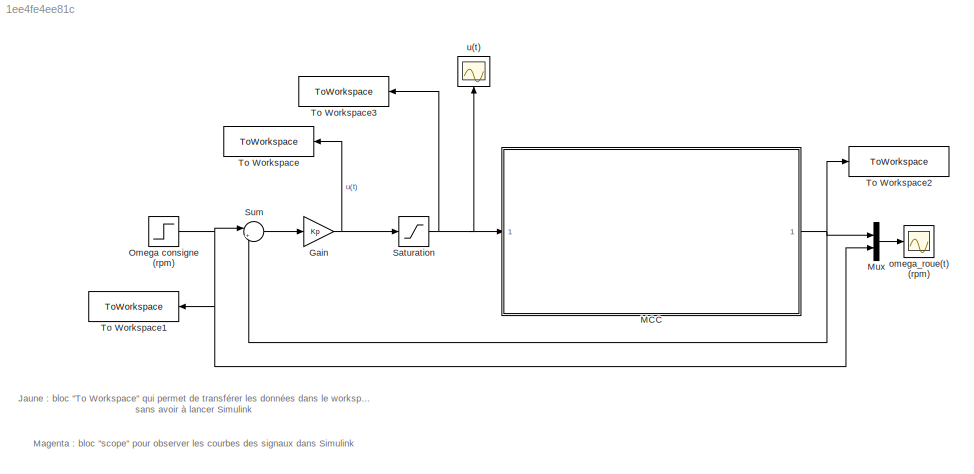
MODEL slx_1ee4fe4ee81c
KIND model
CONFIG AbsTol = auto
CONFIG EnableMultiTasking = off
CONFIG FixedStep = auto
CONFIG MaxStep = auto
CONFIG MinStep = auto
CONFIG RelTol = 1e-3
CONFIG SampleTimeConstraint = Unconstrained
CONFIG SolverName = VariableStepAuto
CONFIG StartTime = 0.0
CONFIG StopTime = 4
BLOCK [Gain] Gain
  Gain = Kp
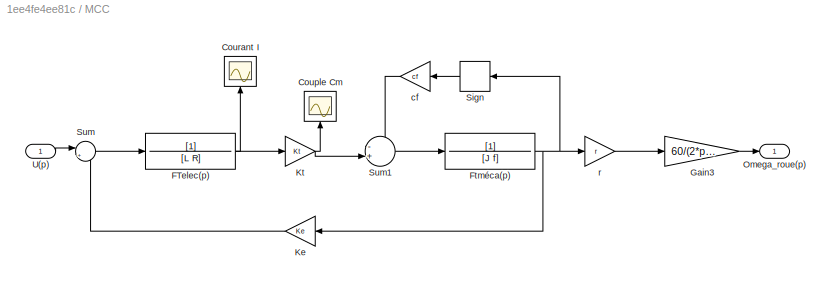
BLOCK [SubSystem] MCC
BLOCK [Scope] MCC/Couple Cm
  ActiveDisplayYMaximum = 1
  ActiveDisplayYMinimum = -1
  DataLoggingVariableName = ScopeData2
  Floating = off
  GraphicalSettings = {"Style":{"BackgroundColor":[0.12941176470588237,0.12941176470588237,0.12941176470588237],"AxesColor":[0.07058823529411765,0.07058823529411765,0.07058823529411765],"LabelsColor":[0.8509803921568627,0.8509803921568627,0.8509803921568627],"PreserveColors":false,"Visible":[true],"LineStyle":["-"],"LineWidth":[1.5],"BarWidth":[0.9],"LineColor":["auto"],"LineFaceAlpha":[1],"LineEdgeAlpha":[1],"Marker":...<+1896ch>
  MultipleDisplayCache = [{"MaxYLimMag":1,"MaxYLimReal":1,"MinYLimMag":0,"MinYLimReal":-1,"PlotAsMagnitudePhase":false,"ShowGrid":true,"ShowLegend":false,"Title":"%<SignalLabel>","YLabel":""}]
  NameLocation = left
  NumInputPorts = 1
  ScopeFrameLocation = window
  WasSavedAsWebScope = on
  WindowPosition = [573.000000,323.000000,560.000000,420.000000,]
BLOCK [Scope] MCC/Courant I
  ActiveDisplayYMaximum = 1
  ActiveDisplayYMinimum = -1
  DataLoggingVariableName = ScopeData1
  Floating = off
  GraphicalSettings = {"Style":{"BackgroundColor":[0.12941176470588237,0.12941176470588237,0.12941176470588237],"AxesColor":[0.07058823529411765,0.07058823529411765,0.07058823529411765],"LabelsColor":[0.8509803921568627,0.8509803921568627,0.8509803921568627],"PreserveColors":false,"Visible":[true],"LineStyle":["-"],"LineWidth":[1.5],"BarWidth":[0.9],"LineColor":["auto"],"LineFaceAlpha":[1],"LineEdgeAlpha":[1],"Marker":...<+1906ch>
  MultipleDisplayCache = [{"MaxYLimMag":1,"MaxYLimReal":1,"MinYLimMag":0,"MinYLimReal":-1,"PlotAsMagnitudePhase":false,"ShowGrid":true,"ShowLegend":false,"Title":"%<SignalLabel>","YLabel":""}]
  NameLocation = right
  NumInputPorts = 1
  ScopeFrameLocation = window
  WasSavedAsWebScope = on
  WindowPosition = [573.000000,323.000000,560.000000,420.000000,]
BLOCK [TransferFcn] MCC/FTelec(p)
  Denominator = [L R]
BLOCK [TransferFcn] MCC/Ftméca(p)
  Denominator = [J f]
BLOCK [Gain] MCC/Gain3
  Gain = 60/(2*pi)
BLOCK [Gain] MCC/Ke
  Gain = Ke
BLOCK [Gain] MCC/Kt
  Gain = Kt
BLOCK [Outport] MCC/Omega_roue(p)
BLOCK [Signum] MCC/Sign
BLOCK [Sum] MCC/Sum
  Inputs = |+-
BLOCK [Sum] MCC/Sum1
  Inputs = -+|
  NameLocation = top
BLOCK [Inport] MCC/U(p)
BLOCK [Gain] MCC/cf
  Gain = cf
BLOCK [Gain] MCC/r
  Gain = r
BLOCK [Mux] Mux
  DisplayOption = bar
  Inputs = 2
BLOCK [Step] Omega consigne (rpm)
  After = 216
  SampleTime = 0
BLOCK [Saturate] Saturation
  LowerLimit = -7.34
  UpperLimit = 7.34
BLOCK [Sum] Sum
  Inputs = |+-
BLOCK [ToWorkspace] To Workspace
  FixptAsFi = on
  MaxDataPoints = inf
  NameLocation = top
  SampleTime = -1
  VariableName = u
BLOCK [ToWorkspace] To Workspace1
  FixptAsFi = on
  MaxDataPoints = inf
  NameLocation = top
  SampleTime = -1
  VariableName = omega_consigne
BLOCK [ToWorkspace] To Workspace2
  FixptAsFi = on
  MaxDataPoints = inf
  NameLocation = top
  SampleTime = -1
  VariableName = omega_roue
BLOCK [ToWorkspace] To Workspace3
  FixptAsFi = on
  MaxDataPoints = inf
  NameLocation = top
  SampleTime = -1
  VariableName = u_sat
BLOCK [Scope] omega_roue(t) (rpm)
  ActiveDisplayYMaximum = 349.87192239105997
  ActiveDisplayYMinimum = 30.932240726116788
  Floating = off
  GraphicalSettings = {"Style":{"BackgroundColor":[0.12941176470588237,0.12941176470588237,0.12941176470588237],"AxesColor":[0.07058823529411765,0.07058823529411765,0.07058823529411765],"LabelsColor":[0.8509803921568627,0.8509803921568627,0.8509803921568627],"PreserveColors":false,"Visible":[true,true],"LineStyle":["-","-"],"LineWidth":[1.5,1.5],"BarWidth":[0.9,0.9],"LineColor":["auto","auto"],"LineFaceAlpha":[1,1],"Li...<+2413ch>
  MultipleDisplayCache = [{"MaxYLimMag":243,"MaxYLimReal":349.87192239105997,"MinYLimMag":0,"MinYLimReal":30.932240726116788,"PlotAsMagnitudePhase":false,"ShowGrid":true,"ShowLegend":true,"Title":"%<SignalLabel>","YLabel":""}]
  NumInputPorts = 1
  ScopeFrameLocation = window
  ShowLegend = on
  WasSavedAsWebScope = on
  WindowPosition = [197.000000,280.000000,854.000000,623.000000,]
BLOCK [Scope] u(t)
  ActiveDisplayYMaximum = 1
  ActiveDisplayYMinimum = -1
  DataLoggingVariableName = ScopeData4
  Floating = off
  GraphicalSettings = {"Style":{"BackgroundColor":[0.12941176470588237,0.12941176470588237,0.12941176470588237],"AxesColor":[0.07058823529411765,0.07058823529411765,0.07058823529411765],"LabelsColor":[0.8509803921568627,0.8509803921568627,0.8509803921568627],"PreserveColors":false,"Visible":[true],"LineStyle":["-"],"LineWidth":[1.5],"BarWidth":[0.9],"LineColor":["auto"],"LineFaceAlpha":[1],"LineEdgeAlpha":[1],"Marker":...<+1902ch>
  MultipleDisplayCache = [{"MaxYLimMag":1,"MaxYLimReal":1,"MinYLimMag":0,"MinYLimReal":-1,"PlotAsMagnitudePhase":false,"ShowGrid":true,"ShowLegend":false,"Title":"%<SignalLabel>","YLabel":""}]
  NameLocation = right
  NumInputPorts = 1
  ScopeFrameLocation = window
  WasSavedAsWebScope = on
  WindowPosition = [680.000000,330.000000,560.000000,420.000000,]
ANNOTATION (root): Jaune : bloc "To Workspace" qui permet de transférer les données dans le workspace MATLAB, utilse pour tracer des courbes sans avoir à lancer Simulink
ANNOTATION (root): Magenta : bloc "scope" pour observer les courbes des signaux dans Simulink
NET Gain:1 -> Saturation:1, To Workspace:1
NET MCC/FTelec(p):1 -> MCC/Courant I:1, MCC/Kt:1
NET MCC/Ftméca(p):1 -> MCC/Ke:1, MCC/Sign:1, MCC/r:1
LINE MCC/Gain3:1 -> MCC/Omega_roue(p):1
LINE MCC/Ke:1 -> MCC/Sum:2
NET MCC/Kt:1 -> MCC/Couple Cm:1, MCC/Sum1:2
LINE MCC/Sign:1 -> MCC/cf:1
LINE MCC/Sum1:1 -> MCC/Ftméca(p):1
LINE MCC/Sum:1 -> MCC/FTelec(p):1
LINE MCC/U(p):1 -> MCC/Sum:1
LINE MCC/cf:1 -> MCC/Sum1:1
LINE MCC/r:1 -> MCC/Gain3:1
NET MCC:1 -> Mux:1, Sum:2, To Workspace2:1
LINE Mux:1 -> omega_roue(t) (rpm):1
NET Omega consigne (rpm):1 -> Mux:2, Sum:1, To Workspace1:1
NET Saturation:1 -> MCC:1, To Workspace3:1, u(t):1
LINE Sum:1 -> Gain:1
note: NET lines group one-source signal fan-out (src -> all destinations, sorted); 1:1 wires keep LINE
